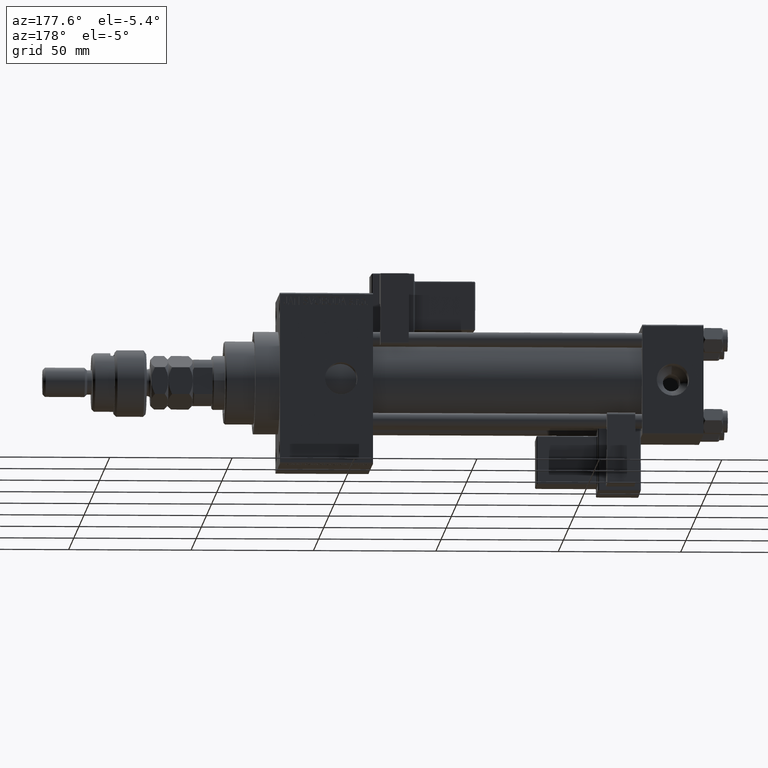
[diagram: clean part render]
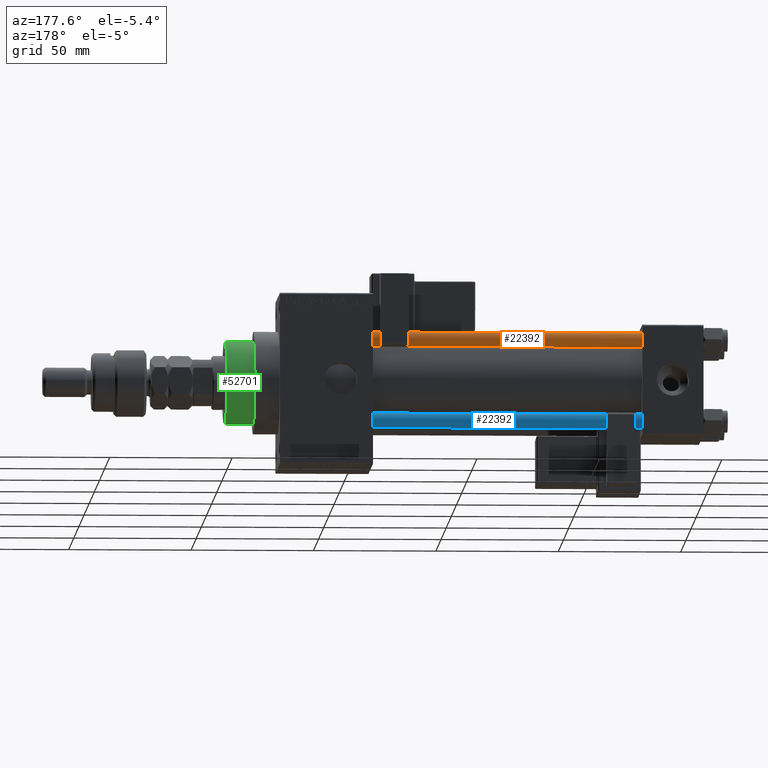
[diagram: same view with three faces highlighted in distinct colors, each labeled with its STEP entity id]
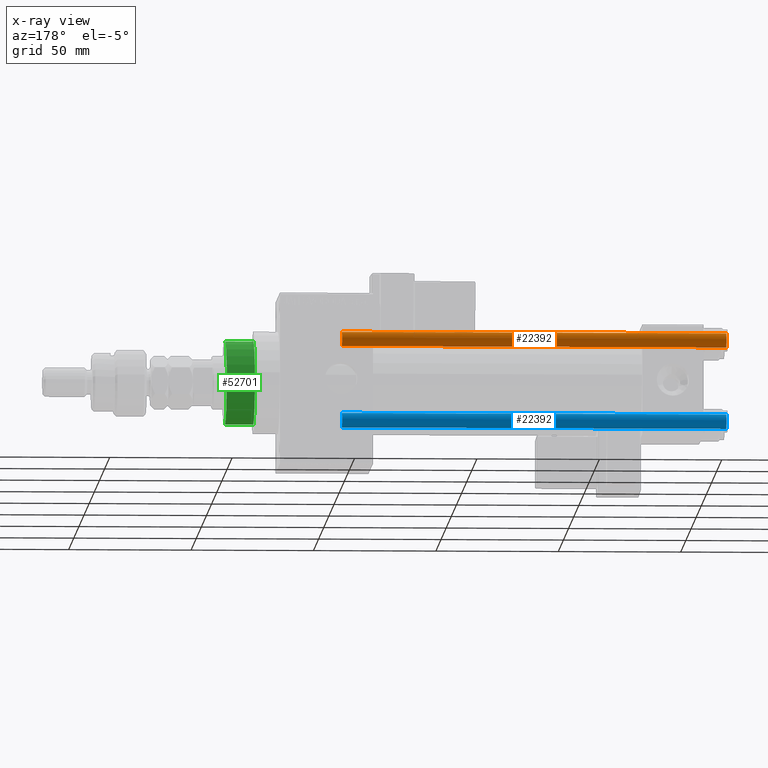
[diagram: x-ray of the same camera — body ghosted, the three highlighted faces saturated]
A machine part, auxiliary view with three faces highlighted in distinct colors.
The next image is the same camera in x-ray (body ghosted, the three faces saturated) — at least one of them is partly hidden behind the body in this view.
Their STEP definitions:

[orange] entity #22392 — the highlighted cylindrical surface (edge-blend (fillet) strip) has radius 3 mm, axis along (-1, -0, 0).
#1875 = VERTEX_POINT ( 'NONE', #49088 ) ;
#2575 = ORIENTED_EDGE ( 'NONE', *, *, #6260, .F. ) ;
#2677 = VERTEX_POINT ( 'NONE', #44184 ) ;
#3802 = CARTESIAN_POINT ( 'NONE',  ( 0.000000000000000000, 0.000000000000000000, 0.5000000000000281997 ) ) ;
#6260 = EDGE_CURVE ( 'NONE', #2677, #11216, #44933, .T. ) ;
#6261 = VECTOR ( 'NONE', #40085, 1000.000000000000000 ) ;
#11216 = VERTEX_POINT ( 'NONE', #41299 ) ;
#12026 = CARTESIAN_POINT ( 'NONE',  ( -3.000000000000000444, 0.000000000000000000, 158.0000000000000000 ) ) ;
#14463 = EDGE_CURVE ( 'NONE', #2677, #53200, #34091, .T. ) ;
#16637 = CYLINDRICAL_SURFACE ( 'NONE', #35150, 3.000000000000000444 ) ;
#18118 = VECTOR ( 'NONE', #23575, 1000.000000000000000 ) ;
#20274 = DIRECTION ( 'NONE',  ( 0.000000000000000000, 0.000000000000000000, -1.000000000000000000 ) ) ;
#20450 = EDGE_CURVE ( 'NONE', #53200, #1875, #35713, .T. ) ;
#21027 = DIRECTION ( 'NONE',  ( -0.000000000000000000, -0.000000000000000000, -1.000000000000000000 ) ) ;
#21120 = DIRECTION ( 'NONE',  ( 1.000000000000000000, 0.000000000000000000, 0.000000000000000000 ) ) ;
#22392 = ADVANCED_FACE ( 'NONE', ( #24868 ), #16637, .T. ) ;
#22830 = CARTESIAN_POINT ( 'NONE',  ( 3.000000000000000444, 3.673940397442060361E-16, 158.0000000000000000 ) ) ;
#23575 = DIRECTION ( 'NONE',  ( -0.000000000000000000, -0.000000000000000000, -1.000000000000000000 ) ) ;
#24326 = DIRECTION ( 'NONE',  ( -1.000000000000000000, 0.000000000000000000, 0.000000000000000000 ) ) ;
#24868 = FACE_OUTER_BOUND ( 'NONE', #37781, .T. ) ;
#25148 = CARTESIAN_POINT ( 'NONE',  ( 0.000000000000000000, 0.000000000000000000, 158.0000000000000000 ) ) ;
#25396 = EDGE_CURVE ( 'NONE', #1875, #11216, #30899, .T. ) ;
#30899 = CIRCLE ( 'NONE', #44006, 3.000000000000000444 ) ;
#34091 = CIRCLE ( 'NONE', #53294, 3.000000000000000444 ) ;
#35150 = AXIS2_PLACEMENT_3D ( 'NONE', #25148, #21027, #24326 ) ;
#35713 = LINE ( 'NONE', #22830, #6261 ) ;
#36615 = CARTESIAN_POINT ( 'NONE',  ( 3.000000000000000444, 3.673940397442060361E-16, 157.5000000000000000 ) ) ;
#36994 = CARTESIAN_POINT ( 'NONE',  ( 0.000000000000000000, 0.000000000000000000, 157.5000000000000000 ) ) ;
#37288 = DIRECTION ( 'NONE',  ( -0.000000000000000000, -0.000000000000000000, 1.000000000000000000 ) ) ;
#37781 = EDGE_LOOP ( 'NONE', ( #38133, #51869, #45675, #2575 ) ) ;
#38133 = ORIENTED_EDGE ( 'NONE', *, *, #14463, .T. ) ;
#40085 = DIRECTION ( 'NONE',  ( -0.000000000000000000, -0.000000000000000000, -1.000000000000000000 ) ) ;
#41299 = CARTESIAN_POINT ( 'NONE',  ( -3.000000000000000444, 0.000000000000000000, 0.5000000000000281997 ) ) ;
#44006 = AXIS2_PLACEMENT_3D ( 'NONE', #3802, #37288, #21120 ) ;
#44184 = CARTESIAN_POINT ( 'NONE',  ( -3.000000000000000444, 0.000000000000000000, 157.5000000000000000 ) ) ;
#44933 = LINE ( 'NONE', #12026, #18118 ) ;
#45675 = ORIENTED_EDGE ( 'NONE', *, *, #25396, .T. ) ;
#49088 = CARTESIAN_POINT ( 'NONE',  ( 3.000000000000000444, 3.673940397442060361E-16, 0.5000000000000281997 ) ) ;
#49841 = DIRECTION ( 'NONE',  ( 1.000000000000000000, 0.000000000000000000, 0.000000000000000000 ) ) ;
#51869 = ORIENTED_EDGE ( 'NONE', *, *, #20450, .T. ) ;
#53200 = VERTEX_POINT ( 'NONE', #36615 ) ;
#53294 = AXIS2_PLACEMENT_3D ( 'NONE', #36994, #20274, #49841 ) ;

[blue] entity #22392 — the highlighted cylindrical surface (edge-blend (fillet) strip) has radius 3 mm, axis along (1, -0, 0).
#1875 = VERTEX_POINT ( 'NONE', #49088 ) ;
#2575 = ORIENTED_EDGE ( 'NONE', *, *, #6260, .F. ) ;
#2677 = VERTEX_POINT ( 'NONE', #44184 ) ;
#3802 = CARTESIAN_POINT ( 'NONE',  ( 0.000000000000000000, 0.000000000000000000, 0.5000000000000281997 ) ) ;
#6260 = EDGE_CURVE ( 'NONE', #2677, #11216, #44933, .T. ) ;
#6261 = VECTOR ( 'NONE', #40085, 1000.000000000000000 ) ;
#11216 = VERTEX_POINT ( 'NONE', #41299 ) ;
#12026 = CARTESIAN_POINT ( 'NONE',  ( -3.000000000000000444, 0.000000000000000000, 158.0000000000000000 ) ) ;
#14463 = EDGE_CURVE ( 'NONE', #2677, #53200, #34091, .T. ) ;
#16637 = CYLINDRICAL_SURFACE ( 'NONE', #35150, 3.000000000000000444 ) ;
#18118 = VECTOR ( 'NONE', #23575, 1000.000000000000000 ) ;
#20274 = DIRECTION ( 'NONE',  ( 0.000000000000000000, 0.000000000000000000, -1.000000000000000000 ) ) ;
#20450 = EDGE_CURVE ( 'NONE', #53200, #1875, #35713, .T. ) ;
#21027 = DIRECTION ( 'NONE',  ( -0.000000000000000000, -0.000000000000000000, -1.000000000000000000 ) ) ;
#21120 = DIRECTION ( 'NONE',  ( 1.000000000000000000, 0.000000000000000000, 0.000000000000000000 ) ) ;
#22392 = ADVANCED_FACE ( 'NONE', ( #24868 ), #16637, .T. ) ;
#22830 = CARTESIAN_POINT ( 'NONE',  ( 3.000000000000000444, 3.673940397442060361E-16, 158.0000000000000000 ) ) ;
#23575 = DIRECTION ( 'NONE',  ( -0.000000000000000000, -0.000000000000000000, -1.000000000000000000 ) ) ;
#24326 = DIRECTION ( 'NONE',  ( -1.000000000000000000, 0.000000000000000000, 0.000000000000000000 ) ) ;
#24868 = FACE_OUTER_BOUND ( 'NONE', #37781, .T. ) ;
#25148 = CARTESIAN_POINT ( 'NONE',  ( 0.000000000000000000, 0.000000000000000000, 158.0000000000000000 ) ) ;
#25396 = EDGE_CURVE ( 'NONE', #1875, #11216, #30899, .T. ) ;
#30899 = CIRCLE ( 'NONE', #44006, 3.000000000000000444 ) ;
#34091 = CIRCLE ( 'NONE', #53294, 3.000000000000000444 ) ;
#35150 = AXIS2_PLACEMENT_3D ( 'NONE', #25148, #21027, #24326 ) ;
#35713 = LINE ( 'NONE', #22830, #6261 ) ;
#36615 = CARTESIAN_POINT ( 'NONE',  ( 3.000000000000000444, 3.673940397442060361E-16, 157.5000000000000000 ) ) ;
#36994 = CARTESIAN_POINT ( 'NONE',  ( 0.000000000000000000, 0.000000000000000000, 157.5000000000000000 ) ) ;
#37288 = DIRECTION ( 'NONE',  ( -0.000000000000000000, -0.000000000000000000, 1.000000000000000000 ) ) ;
#37781 = EDGE_LOOP ( 'NONE', ( #38133, #51869, #45675, #2575 ) ) ;
#38133 = ORIENTED_EDGE ( 'NONE', *, *, #14463, .T. ) ;
#40085 = DIRECTION ( 'NONE',  ( -0.000000000000000000, -0.000000000000000000, -1.000000000000000000 ) ) ;
#41299 = CARTESIAN_POINT ( 'NONE',  ( -3.000000000000000444, 0.000000000000000000, 0.5000000000000281997 ) ) ;
#44006 = AXIS2_PLACEMENT_3D ( 'NONE', #3802, #37288, #21120 ) ;
#44184 = CARTESIAN_POINT ( 'NONE',  ( -3.000000000000000444, 0.000000000000000000, 157.5000000000000000 ) ) ;
#44933 = LINE ( 'NONE', #12026, #18118 ) ;
#45675 = ORIENTED_EDGE ( 'NONE', *, *, #25396, .T. ) ;
#49088 = CARTESIAN_POINT ( 'NONE',  ( 3.000000000000000444, 3.673940397442060361E-16, 0.5000000000000281997 ) ) ;
#49841 = DIRECTION ( 'NONE',  ( 1.000000000000000000, 0.000000000000000000, 0.000000000000000000 ) ) ;
#51869 = ORIENTED_EDGE ( 'NONE', *, *, #20450, .T. ) ;
#53200 = VERTEX_POINT ( 'NONE', #36615 ) ;
#53294 = AXIS2_PLACEMENT_3D ( 'NONE', #36994, #20274, #49841 ) ;

[green] entity #52701 — the highlighted cylindrical surface (partial cylindrical patch) has radius 17 mm, axis along (-1, 0, 0).
#175 = CYLINDRICAL_SURFACE ( 'NONE', #9520, 17.00000000000000000 ) ;
#569 = EDGE_LOOP ( 'NONE', ( #17977, #53865, #20484, #41984 ) ) ;
#1579 = CARTESIAN_POINT ( 'NONE',  ( -17.00000000000000000, 0.000000000000000000, 54.76000000000001222 ) ) ;
#1858 = VERTEX_POINT ( 'NONE', #15396 ) ;
#2530 = AXIS2_PLACEMENT_3D ( 'NONE', #33042, #24267, #49447 ) ;
#3213 = DIRECTION ( 'NONE',  ( -1.000000000000000000, 0.000000000000000000, 0.000000000000000000 ) ) ;
#6199 = CARTESIAN_POINT ( 'NONE',  ( -17.00000000000000000, 0.000000000000000000, 43.25999999999999801 ) ) ;
#9520 = AXIS2_PLACEMENT_3D ( 'NONE', #33403, #16396, #3213 ) ;
#14420 = VECTOR ( 'NONE', #27050, 1000.000000000000000 ) ;
#15396 = CARTESIAN_POINT ( 'NONE',  ( 17.00000000000000000, 2.081899558550500280E-15, 54.76000000000001222 ) ) ;
#16396 = DIRECTION ( 'NONE',  ( -0.000000000000000000, -0.000000000000000000, -1.000000000000000000 ) ) ;
#17175 = VERTEX_POINT ( 'NONE', #29533 ) ;
#17977 = ORIENTED_EDGE ( 'NONE', *, *, #28682, .F. ) ;
#18342 = CIRCLE ( 'NONE', #2530, 17.00000000000000000 ) ;
#20484 = ORIENTED_EDGE ( 'NONE', *, *, #52785, .T. ) ;
#22018 = EDGE_CURVE ( 'NONE', #31303, #17175, #27281, .T. ) ;
#22033 = AXIS2_PLACEMENT_3D ( 'NONE', #47233, #47744, #51591 ) ;
#24267 = DIRECTION ( 'NONE',  ( 0.000000000000000000, 0.000000000000000000, -1.000000000000000000 ) ) ;
#26262 = LINE ( 'NONE', #26528, #44557 ) ;
#26528 = CARTESIAN_POINT ( 'NONE',  ( -17.00000000000000000, 0.000000000000000000, 55.26000000000000512 ) ) ;
#27050 = DIRECTION ( 'NONE',  ( -0.000000000000000000, -0.000000000000000000, -1.000000000000000000 ) ) ;
#27281 = CIRCLE ( 'NONE', #22033, 17.00000000000000000 ) ;
#27580 = CARTESIAN_POINT ( 'NONE',  ( 17.00000000000000000, 2.081899558550500280E-15, 55.26000000000000512 ) ) ;
#28682 = EDGE_CURVE ( 'NONE', #1858, #17175, #44560, .T. ) ;
#29533 = CARTESIAN_POINT ( 'NONE',  ( 17.00000000000000000, 2.081899558550500280E-15, 43.25999999999999801 ) ) ;
#31303 = VERTEX_POINT ( 'NONE', #6199 ) ;
#33042 = CARTESIAN_POINT ( 'NONE',  ( 0.000000000000000000, 0.000000000000000000, 54.76000000000001222 ) ) ;
#33403 = CARTESIAN_POINT ( 'NONE',  ( 0.000000000000000000, 0.000000000000000000, 55.26000000000000512 ) ) ;
#41984 = ORIENTED_EDGE ( 'NONE', *, *, #22018, .T. ) ;
#42967 = DIRECTION ( 'NONE',  ( -0.000000000000000000, -0.000000000000000000, -1.000000000000000000 ) ) ;
#44557 = VECTOR ( 'NONE', #42967, 1000.000000000000000 ) ;
#44560 = LINE ( 'NONE', #27580, #14420 ) ;
#45177 = FACE_OUTER_BOUND ( 'NONE', #569, .T. ) ;
#47233 = CARTESIAN_POINT ( 'NONE',  ( 0.000000000000000000, 0.000000000000000000, 43.25999999999999801 ) ) ;
#47744 = DIRECTION ( 'NONE',  ( 0.000000000000000000, 0.000000000000000000, 1.000000000000000000 ) ) ;
#49227 = VERTEX_POINT ( 'NONE', #1579 ) ;
#49447 = DIRECTION ( 'NONE',  ( 1.000000000000000000, 0.000000000000000000, 0.000000000000000000 ) ) ;
#51591 = DIRECTION ( 'NONE',  ( 1.000000000000000000, 0.000000000000000000, 0.000000000000000000 ) ) ;
#52701 = ADVANCED_FACE ( 'NONE', ( #45177 ), #175, .T. ) ;
#52785 = EDGE_CURVE ( 'NONE', #49227, #31303, #26262, .T. ) ;
#53210 = EDGE_CURVE ( 'NONE', #1858, #49227, #18342, .T. ) ;
#53865 = ORIENTED_EDGE ( 'NONE', *, *, #53210, .T. ) ;